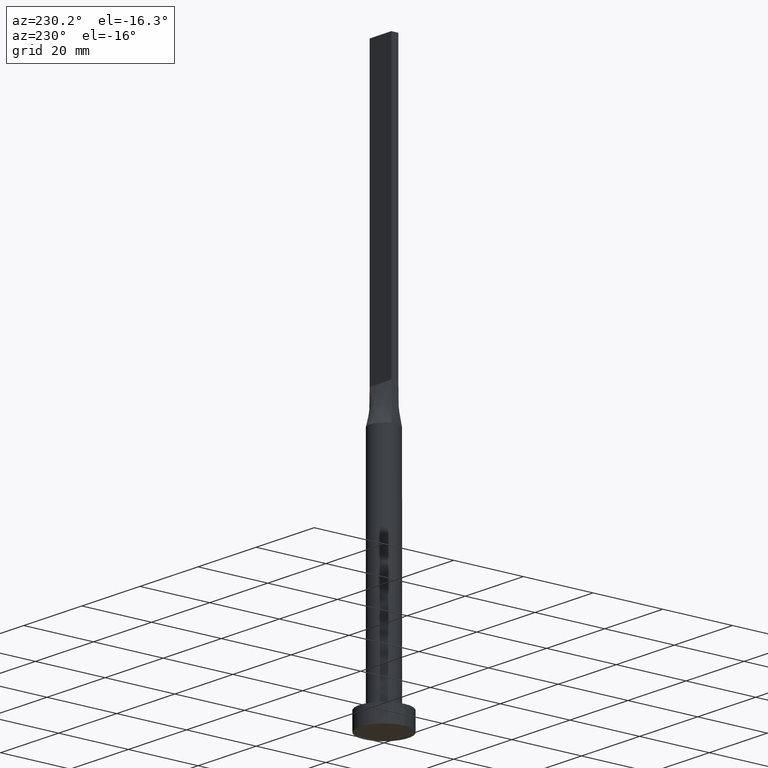
[diagram: clean part render]
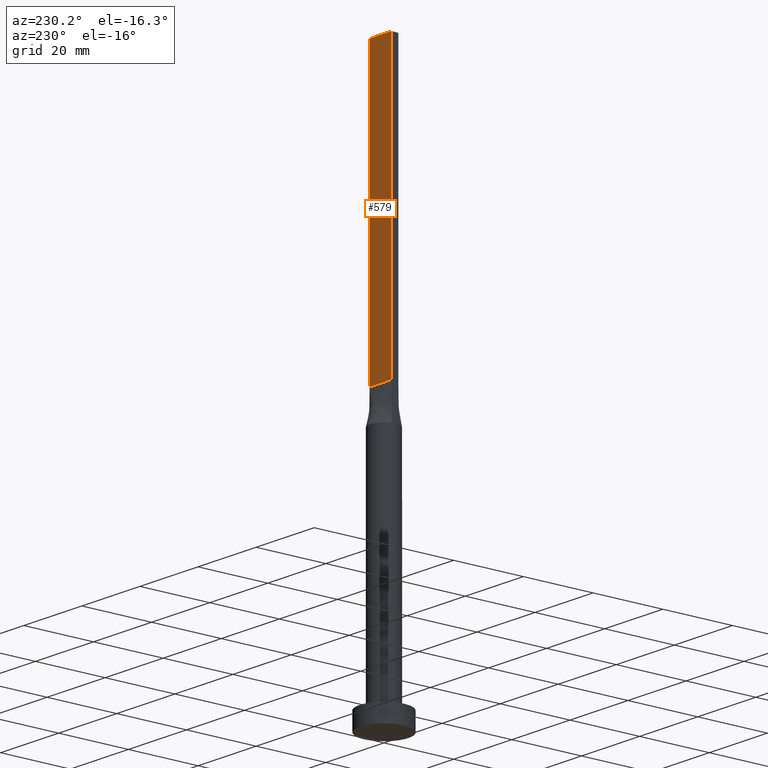
[diagram: same view with one face highlighted and labeled with its STEP entity id]
A machine part, auxiliary view. The second image highlights one B-rep face of the part: STEP entity #579.
In plain terms, the highlighted planar face has unit normal (0, -1, 0).
Its self-contained STEP definition (entity closure, byte-faithful):
#7 = LINE ( 'NONE', #278, #491 ) ;
#8 = DIRECTION ( 'NONE',  ( -0.000000000000000000, -0.000000000000000000, -1.000000000000000000 ) ) ;
#18 = EDGE_CURVE ( 'NONE', #197, #148, #483, .T. ) ;
#58 = ORIENTED_EDGE ( 'NONE', *, *, #577, .T. ) ;
#59 = DIRECTION ( 'NONE',  ( -1.000000000000000000, -0.000000000000000000, -0.000000000000000000 ) ) ;
#89 = VERTEX_POINT ( 'NONE', #532 ) ;
#107 = ORIENTED_EDGE ( 'NONE', *, *, #223, .T. ) ;
#117 = EDGE_CURVE ( 'NONE', #148, #515, #576, .T. ) ;
#148 = VERTEX_POINT ( 'NONE', #322 ) ;
#177 = AXIS2_PLACEMENT_3D ( 'NONE', #501, #509, #275 ) ;
#197 = VERTEX_POINT ( 'NONE', #257 ) ;
#223 = EDGE_CURVE ( 'NONE', #89, #515, #435, .T. ) ;
#242 = VECTOR ( 'NONE', #59, 1000.000000000000000 ) ;
#248 = EDGE_LOOP ( 'NONE', ( #107, #460, #274, #58 ) ) ;
#257 = CARTESIAN_POINT ( 'NONE',  ( 3.750000000000000000, 1.000000000000000000, 160.0000000000000000 ) ) ;
#274 = ORIENTED_EDGE ( 'NONE', *, *, #18, .F. ) ;
#275 = DIRECTION ( 'NONE',  ( 0.000000000000000000, -0.000000000000000000, -1.000000000000000000 ) ) ;
#278 = CARTESIAN_POINT ( 'NONE',  ( 3.750000000000000000, 1.000000000000000000, 160.0000000000000000 ) ) ;
#283 = FACE_OUTER_BOUND ( 'NONE', #248, .T. ) ;
#286 = CARTESIAN_POINT ( 'NONE',  ( -3.750000000000000000, 1.000000000000000000, 80.00000000000000000 ) ) ;
#322 = CARTESIAN_POINT ( 'NONE',  ( -3.750000000000000000, 1.000000000000000000, 160.0000000000000000 ) ) ;
#359 = CARTESIAN_POINT ( 'NONE',  ( -3.750000000000000000, 1.000000000000000000, 160.0000000000000000 ) ) ;
#370 = PLANE ( 'NONE',  #177 ) ;
#400 = VECTOR ( 'NONE', #8, 1000.000000000000000 ) ;
#410 = VECTOR ( 'NONE', #521, 1000.000000000000000 ) ;
#435 = LINE ( 'NONE', #286, #242 ) ;
#460 = ORIENTED_EDGE ( 'NONE', *, *, #117, .F. ) ;
#483 = LINE ( 'NONE', #570, #410 ) ;
#491 = VECTOR ( 'NONE', #553, 1000.000000000000000 ) ;
#496 = CARTESIAN_POINT ( 'NONE',  ( -3.750000000000000000, 1.000000000000000000, 80.00000000000000000 ) ) ;
#501 = CARTESIAN_POINT ( 'NONE',  ( 3.750000000000000000, 1.000000000000000000, 160.0000000000000000 ) ) ;
#509 = DIRECTION ( 'NONE',  ( 0.000000000000000000, -1.000000000000000000, 0.000000000000000000 ) ) ;
#515 = VERTEX_POINT ( 'NONE', #496 ) ;
#521 = DIRECTION ( 'NONE',  ( -1.000000000000000000, 0.000000000000000000, 0.000000000000000000 ) ) ;
#532 = CARTESIAN_POINT ( 'NONE',  ( 3.750000000000000000, 1.000000000000000000, 80.00000000000000000 ) ) ;
#553 = DIRECTION ( 'NONE',  ( -0.000000000000000000, -0.000000000000000000, -1.000000000000000000 ) ) ;
#570 = CARTESIAN_POINT ( 'NONE',  ( 3.750000000000000000, 1.000000000000000000, 160.0000000000000000 ) ) ;
#576 = LINE ( 'NONE', #359, #400 ) ;
#577 = EDGE_CURVE ( 'NONE', #197, #89, #7, .T. ) ;
#579 = ADVANCED_FACE ( 'NONE', ( #283 ), #370, .F. ) ;